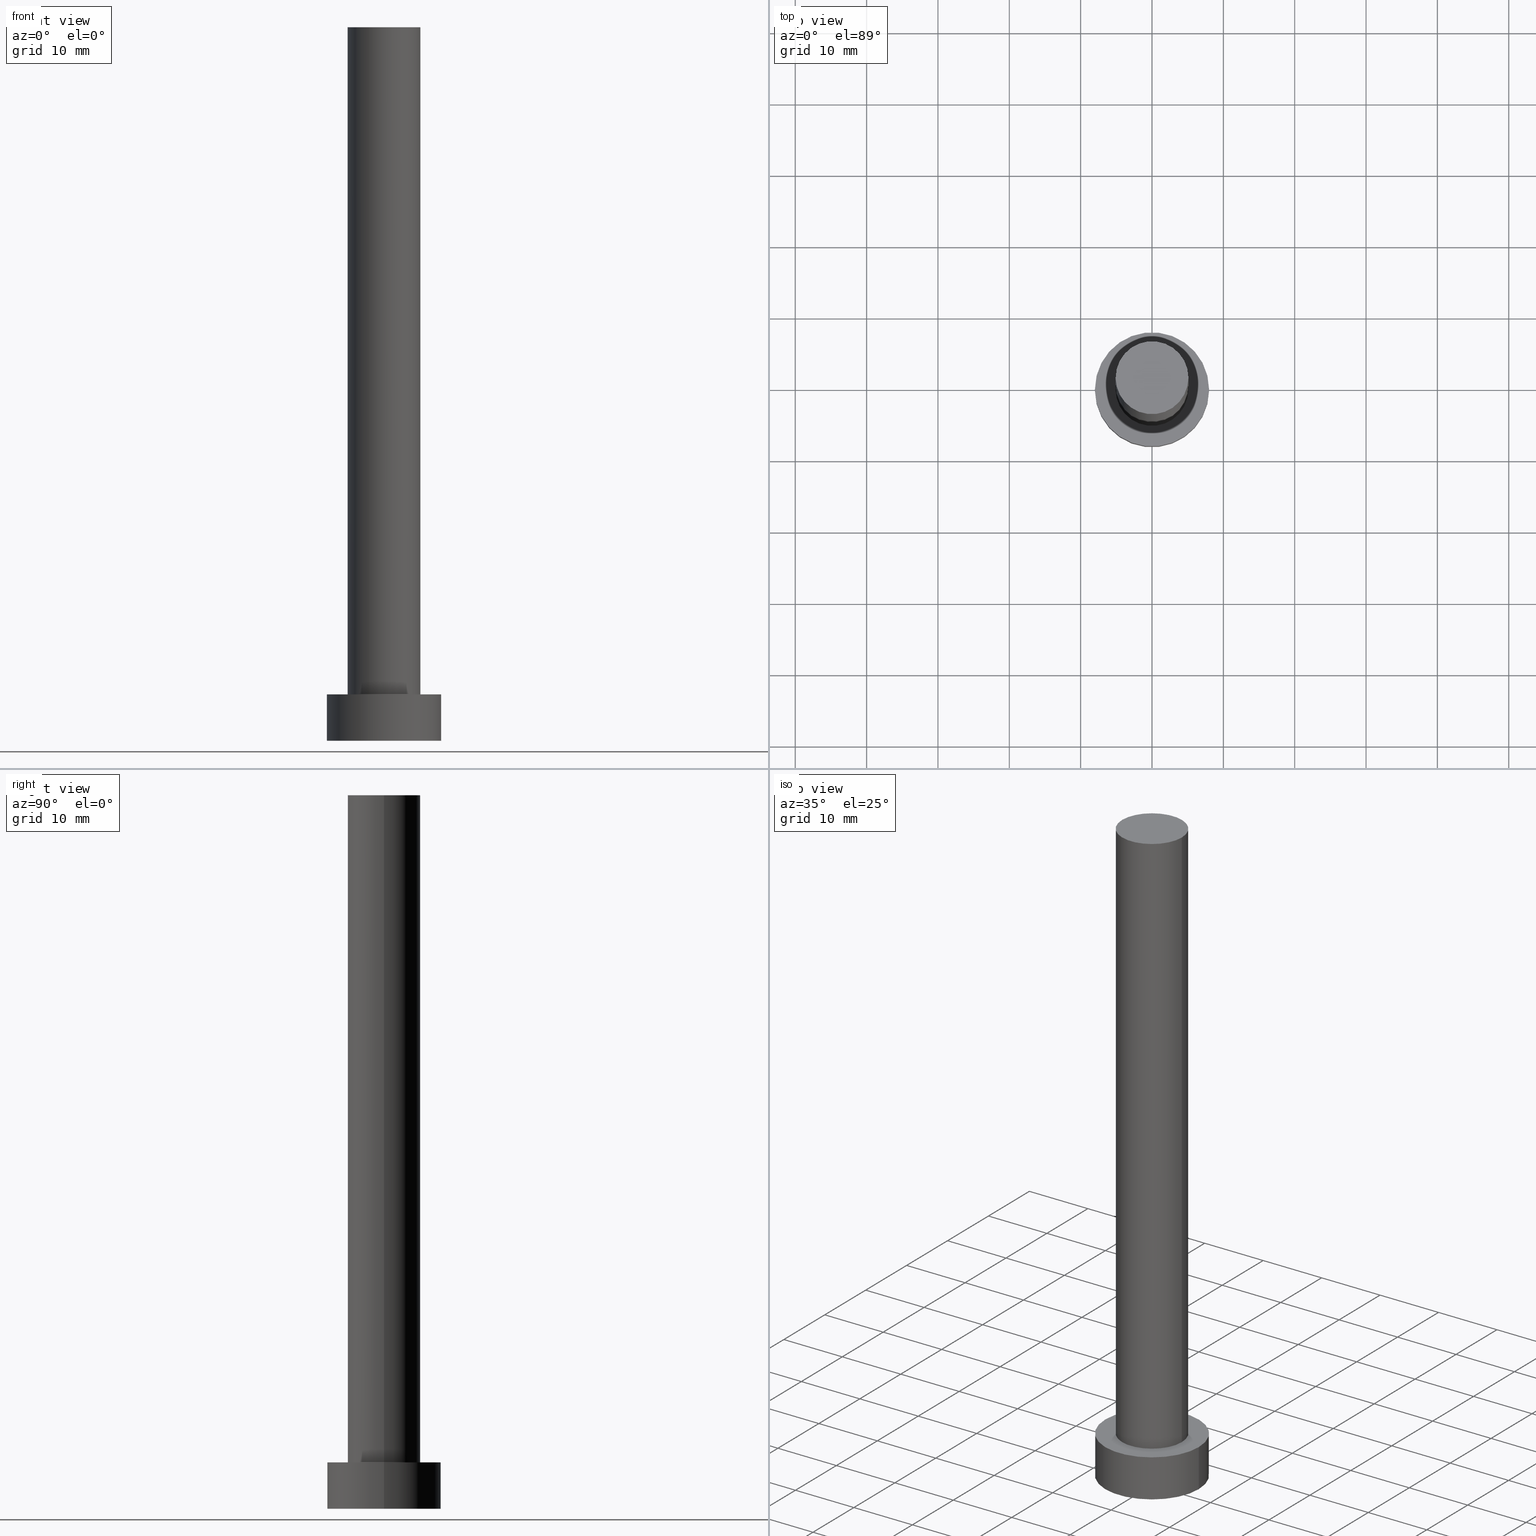
[diagram: canonical four-view strip — front | top / right | iso, engineering-drawing reading convention]
A machine part, canonical four-view strip (front | top / right | iso — engineering-drawing reading convention). The complete STEP part file that produces these views, byte-faithful:
ISO-10303-21;
HEADER;
FILE_DESCRIPTION (( 'STEP AP203' ),
    '1' );
FILE_NAME ('6bbd.STEP',
    '2023-02-13T13:07:44',
    ( '' ),
    ( '' ),
    'SwSTEP 2.0',
    'SolidWorks 2019',
    '' );
FILE_SCHEMA (( 'CONFIG_CONTROL_DESIGN' ));
ENDSEC;

DATA;
#1 = ORIENTED_EDGE ( 'NONE', *, *, #247, .F. ) ;
#2 = PERSON_AND_ORGANIZATION ( #30, #5 ) ;
#3 = EDGE_LOOP ( 'NONE', ( #95, #223 ) ) ;
#4 = CALENDAR_DATE ( 2023, 13, 2 ) ;
#5 = ORGANIZATION ( 'NEUR�EN�', 'NEUR�EN�', '' ) ;
#6 = DIRECTION ( 'NONE',  ( -0.000000000000000000, -0.000000000000000000, -1.000000000000000000 ) ) ;
#7 = APPROVAL_DATE_TIME ( #67, #46 ) ;
#8 = APPROVAL_PERSON_ORGANIZATION ( #41, #117, #212 ) ;
#9 = DIRECTION ( 'NONE',  ( 0.000000000000000000, 0.000000000000000000, 1.000000000000000000 ) ) ;
#10 = DIRECTION ( 'NONE',  ( 0.000000000000000000, 0.000000000000000000, 1.000000000000000000 ) ) ;
#11 = ADVANCED_FACE ( 'NONE', ( #226 ), #193, .T. ) ;
#12 = CARTESIAN_POINT ( 'NONE',  ( 0.000000000000000000, 0.000000000000000000, 0.000000000000000000 ) ) ;
#13 = APPLICATION_CONTEXT ( 'configuration controlled 3d designs of mechanical parts and assemblies' ) ;
#14 = CIRCLE ( 'NONE', #60, 8.000000000000000000 ) ;
#15 = CARTESIAN_POINT ( 'NONE',  ( 0.000000000000000000, 0.000000000000000000, 6.500000000000000000 ) ) ;
#16 =( NAMED_UNIT ( * ) SI_UNIT ( $, .STERADIAN. ) SOLID_ANGLE_UNIT ( ) );
#17 = CARTESIAN_POINT ( 'NONE',  ( 0.000000000000000000, 0.000000000000000000, 6.500000000000000000 ) ) ;
#18 = MECHANICAL_CONTEXT ( 'NONE', #13, 'mechanical' ) ;
#19 = EDGE_LOOP ( 'NONE', ( #119, #21 ) ) ;
#20 = COORDINATED_UNIVERSAL_TIME_OFFSET ( 1, 0, .AHEAD. ) ;
#21 = ORIENTED_EDGE ( 'NONE', *, *, #201, .T. ) ;
#22 = PERSON_AND_ORGANIZATION ( #30, #5 ) ;
#23 = ORIENTED_EDGE ( 'NONE', *, *, #73, .T. ) ;
#24 = ORIENTED_EDGE ( 'NONE', *, *, #35, .F. ) ;
#25 = COORDINATED_UNIVERSAL_TIME_OFFSET ( 1, 0, .AHEAD. ) ;
#26 = CC_DESIGN_DATE_AND_TIME_ASSIGNMENT ( #211, #54, ( #137 ) ) ;
#27 = PERSON_AND_ORGANIZATION_ROLE ( 'classification_officer' ) ;
#28 = AXIS2_PLACEMENT_3D ( 'NONE', #65, #133, #232 ) ;
#29 = PERSON_AND_ORGANIZATION ( #30, #5 ) ;
#30 = PERSON ( 'NEUR�EN�', 'NEUR�EN�', 'NEUR�EN�', ('NEUR�EN�'), ('NEUR�EN�'), ('NEUR�EN�') ) ;
#31 = LOCAL_TIME ( 14, 7, 44.00000000000000000, #49 ) ;
#32 = EDGE_CURVE ( 'NONE', #58, #123, #64, .T. ) ;
#33 = DIRECTION ( 'NONE',  ( 0.000000000000000000, 0.000000000000000000, 1.000000000000000000 ) ) ;
#34 = DIRECTION ( 'NONE',  ( 1.000000000000000000, 0.000000000000000000, 0.000000000000000000 ) ) ;
#35 = EDGE_CURVE ( 'NONE', #150, #142, #84, .T. ) ;
#36 = AXIS2_PLACEMENT_3D ( 'NONE', #183, #177, #53 ) ;
#37 = LOCAL_TIME ( 14, 7, 44.00000000000000000, #25 ) ;
#38 = DIRECTION ( 'NONE',  ( 0.000000000000000000, 0.000000000000000000, 1.000000000000000000 ) ) ;
#39 = CARTESIAN_POINT ( 'NONE',  ( -5.100000000000001421, 0.000000000000000000, 100.0000000000000000 ) ) ;
#40 = ORIENTED_EDGE ( 'NONE', *, *, #187, .T. ) ;
#41 = PERSON_AND_ORGANIZATION ( #30, #5 ) ;
#42 = CLOSED_SHELL ( 'NONE', ( #94, #11, #126, #251, #228, #241, #140 ) ) ;
#43 = DIRECTION ( 'NONE',  ( 1.000000000000000000, 0.000000000000000000, 0.000000000000000000 ) ) ;
#44 = EDGE_LOOP ( 'NONE', ( #74, #173, #98, #24 ) ) ;
#45 = DIRECTION ( 'NONE',  ( -1.000000000000000000, 0.000000000000000000, 0.000000000000000000 ) ) ;
#46 = APPROVAL ( #108, 'NEUR�EN�' ) ;
#47 = FACE_OUTER_BOUND ( 'NONE', #105, .T. ) ;
#48 = DATE_TIME_ROLE ( 'classification_date' ) ;
#49 = COORDINATED_UNIVERSAL_TIME_OFFSET ( 1, 0, .AHEAD. ) ;
#50 = SECURITY_CLASSIFICATION_LEVEL ( 'unclassified' ) ;
#51 = AXIS2_PLACEMENT_3D ( 'NONE', #77, #81, #61 ) ;
#52 = CC_DESIGN_PERSON_AND_ORGANIZATION_ASSIGNMENT ( #2, #97, ( #137 ) ) ;
#53 = DIRECTION ( 'NONE',  ( 1.000000000000000000, 0.000000000000000000, -0.000000000000000000 ) ) ;
#54 = DATE_TIME_ROLE ( 'creation_date' ) ;
#55 = FACE_OUTER_BOUND ( 'NONE', #19, .T. ) ;
#56 = VERTEX_POINT ( 'NONE', #221 ) ;
#57 =( LENGTH_UNIT ( ) NAMED_UNIT ( * ) SI_UNIT ( .MILLI., .METRE. ) );
#58 = VERTEX_POINT ( 'NONE', #39 ) ;
#59 = CARTESIAN_POINT ( 'NONE',  ( 0.000000000000000000, 0.000000000000000000, 6.500000000000000000 ) ) ;
#60 = AXIS2_PLACEMENT_3D ( 'NONE', #249, #38, #90 ) ;
#61 = DIRECTION ( 'NONE',  ( 1.000000000000000000, 0.000000000000000000, 0.000000000000000000 ) ) ;
#62 = CALENDAR_DATE ( 2023, 13, 2 ) ;
#63 = DATE_AND_TIME ( #154, #37 ) ;
#64 = CIRCLE ( 'NONE', #51, 5.100000000000001421 ) ;
#65 = CARTESIAN_POINT ( 'NONE',  ( 0.000000000000000000, 0.000000000000000000, 6.500000000000000000 ) ) ;
#66 = DIRECTION ( 'NONE',  ( -0.000000000000000000, -0.000000000000000000, -1.000000000000000000 ) ) ;
#67 = DATE_AND_TIME ( #107, #31 ) ;
#68 = DIRECTION ( 'NONE',  ( 1.000000000000000000, 0.000000000000000000, 0.000000000000000000 ) ) ;
#69 = CC_DESIGN_DATE_AND_TIME_ASSIGNMENT ( #63, #48, ( #161 ) ) ;
#70 = DIRECTION ( 'NONE',  ( 0.000000000000000000, 0.000000000000000000, 1.000000000000000000 ) ) ;
#71 = CARTESIAN_POINT ( 'NONE',  ( 0.000000000000000000, 0.000000000000000000, 6.500000000000000000 ) ) ;
#72 = DESIGN_CONTEXT ( 'detailed design', #184, 'design' ) ;
#73 = EDGE_CURVE ( 'NONE', #167, #56, #155, .T. ) ;
#74 = ORIENTED_EDGE ( 'NONE', *, *, #201, .F. ) ;
#75 = PERSON_AND_ORGANIZATION ( #30, #5 ) ;
#76 = CARTESIAN_POINT ( 'NONE',  ( 0.000000000000000000, 0.000000000000000000, 0.000000000000000000 ) ) ;
#77 = CARTESIAN_POINT ( 'NONE',  ( 0.000000000000000000, 0.000000000000000000, 100.0000000000000000 ) ) ;
#78 = EDGE_CURVE ( 'NONE', #103, #213, #246, .T. ) ;
#79 = PERSON_AND_ORGANIZATION_ROLE ( 'design_owner' ) ;
#80 = CARTESIAN_POINT ( 'NONE',  ( 0.000000000000000000, 0.000000000000000000, 100.0000000000000000 ) ) ;
#81 = DIRECTION ( 'NONE',  ( 0.000000000000000000, 0.000000000000000000, 1.000000000000000000 ) ) ;
#82 = AXIS2_PLACEMENT_3D ( 'NONE', #217, #70, #207 ) ;
#83 = COORDINATED_UNIVERSAL_TIME_OFFSET ( 1, 0, .AHEAD. ) ;
#84 = LINE ( 'NONE', #172, #216 ) ;
#85 = PRODUCT_DEFINITION_SHAPE ( 'NONE', 'NONE',  #137 ) ;
#86 = CARTESIAN_POINT ( 'NONE',  ( 0.000000000000000000, 0.000000000000000000, 6.500000000000000000 ) ) ;
#87 = CARTESIAN_POINT ( 'NONE',  ( 0.000000000000000000, 0.000000000000000000, 100.0000000000000000 ) ) ;
#88 = CC_DESIGN_SECURITY_CLASSIFICATION ( #161, ( #122 ) ) ;
#89 = CARTESIAN_POINT ( 'NONE',  ( -5.100000000000001421, 0.000000000000000000, 100.0000000000000000 ) ) ;
#90 = DIRECTION ( 'NONE',  ( 1.000000000000000000, 0.000000000000000000, 0.000000000000000000 ) ) ;
#91 = EDGE_LOOP ( 'NONE', ( #1, #101, #225, #23 ) ) ;
#92 = AXIS2_PLACEMENT_3D ( 'NONE', #71, #160, #68 ) ;
#93 = CIRCLE ( 'NONE', #82, 5.100000000000001421 ) ;
#94 = ADVANCED_FACE ( 'NONE', ( #215 ), #196, .T. ) ;
#95 = ORIENTED_EDGE ( 'NONE', *, *, #73, .F. ) ;
#96 = DATE_AND_TIME ( #62, #135 ) ;
#97 = PERSON_AND_ORGANIZATION_ROLE ( 'creator' ) ;
#98 = ORIENTED_EDGE ( 'NONE', *, *, #179, .T. ) ;
#99 = CC_DESIGN_APPROVAL ( #117, ( #137 ) ) ;
#100 = PERSON_AND_ORGANIZATION ( #30, #5 ) ;
#101 = ORIENTED_EDGE ( 'NONE', *, *, #32, .F. ) ;
#102 = DATE_AND_TIME ( #4, #233 ) ;
#103 = VERTEX_POINT ( 'NONE', #227 ) ;
#104 = APPROVAL_STATUS ( 'not_yet_approved' ) ;
#105 = EDGE_LOOP ( 'NONE', ( #145, #240, #146, #189 ) ) ;
#106 = ORIENTED_EDGE ( 'NONE', *, *, #206, .T. ) ;
#107 = CALENDAR_DATE ( 2023, 13, 2 ) ;
#108 = APPROVAL_STATUS ( 'not_yet_approved' ) ;
#109 = DIRECTION ( 'NONE',  ( 1.000000000000000000, 0.000000000000000000, 0.000000000000000000 ) ) ;
#110 = CC_DESIGN_PERSON_AND_ORGANIZATION_ASSIGNMENT ( #220, #118, ( #122 ) ) ;
#111 = PLANE ( 'NONE',  #36 ) ;
#112 = EDGE_LOOP ( 'NONE', ( #210, #148 ) ) ;
#113 = AXIS2_PLACEMENT_3D ( 'NONE', #59, #185, #209 ) ;
#114 = CYLINDRICAL_SURFACE ( 'NONE', #116, 5.100000000000001421 ) ;
#115 = DIRECTION ( 'NONE',  ( 1.000000000000000000, 0.000000000000000000, -0.000000000000000000 ) ) ;
#116 = AXIS2_PLACEMENT_3D ( 'NONE', #80, #164, #235 ) ;
#117 = APPROVAL ( #127, 'NEUR�EN�' ) ;
#118 = PERSON_AND_ORGANIZATION_ROLE ( 'design_supplier' ) ;
#119 = ORIENTED_EDGE ( 'NONE', *, *, #222, .T. ) ;
#120 = MANIFOLD_SOLID_BREP ( 'P�idat vysunut�m3', #42 ) ;
#121 = DIRECTION ( 'NONE',  ( 0.000000000000000000, 0.000000000000000000, 1.000000000000000000 ) ) ;
#122 = PRODUCT_DEFINITION_FORMATION_WITH_SPECIFIED_SOURCE ( 'LIBOVOLN�', '', #171, .NOT_KNOWN. ) ;
#123 = VERTEX_POINT ( 'NONE', #175 ) ;
#124 = CALENDAR_DATE ( 2023, 13, 2 ) ;
#125 = ORIENTED_EDGE ( 'NONE', *, *, #192, .F. ) ;
#126 = ADVANCED_FACE ( 'NONE', ( #47 ), #244, .T. ) ;
#127 = APPROVAL_STATUS ( 'not_yet_approved' ) ;
#128 = AXIS2_PLACEMENT_3D ( 'NONE', #12, #33, #115 ) ;
#129 = CC_DESIGN_PERSON_AND_ORGANIZATION_ASSIGNMENT ( #100, #79, ( #171 ) ) ;
#130 = APPROVAL_ROLE ( '' ) ;
#131 = LOCAL_TIME ( 14, 7, 44.00000000000000000, #147 ) ;
#132 = CIRCLE ( 'NONE', #254, 8.000000000000000000 ) ;
#133 = DIRECTION ( 'NONE',  ( -0.000000000000000000, -0.000000000000000000, -1.000000000000000000 ) ) ;
#134 = AXIS2_PLACEMENT_3D ( 'NONE', #17, #165, #109 ) ;
#135 = LOCAL_TIME ( 14, 7, 44.00000000000000000, #83 ) ;
#136 = PLANE ( 'NONE',  #128 ) ;
#137 = PRODUCT_DEFINITION ( 'NEZN�M�', '', #122, #72 ) ;
#138 = CARTESIAN_POINT ( 'NONE',  ( 0.000000000000000000, 0.000000000000000000, 0.000000000000000000 ) ) ;
#139 = APPROVAL_PERSON_ORGANIZATION ( #194, #46, #130 ) ;
#140 = ADVANCED_FACE ( 'NONE', ( #218 ), #111, .T. ) ;
#141 = PERSON_AND_ORGANIZATION_ROLE ( 'creator' ) ;
#142 = VERTEX_POINT ( 'NONE', #219 ) ;
#143 = ADVANCED_BREP_SHAPE_REPRESENTATION ( '6bbd', ( #120, #176 ), #170 ) ;
#144 = PLANE ( 'NONE',  #113 ) ;
#145 = ORIENTED_EDGE ( 'NONE', *, *, #78, .F. ) ;
#146 = ORIENTED_EDGE ( 'NONE', *, *, #35, .T. ) ;
#147 = COORDINATED_UNIVERSAL_TIME_OFFSET ( 1, 0, .AHEAD. ) ;
#148 = ORIENTED_EDGE ( 'NONE', *, *, #179, .F. ) ;
#149 = CARTESIAN_POINT ( 'NONE',  ( 5.100000000000001421, 6.245698675651502811E-16, 100.0000000000000000 ) ) ;
#150 = VERTEX_POINT ( 'NONE', #248 ) ;
#151 = AXIS2_PLACEMENT_3D ( 'NONE', #86, #238, #45 ) ;
#152 = AXIS2_PLACEMENT_3D ( 'NONE', #158, #9, #250 ) ;
#153 = DIRECTION ( 'NONE',  ( -1.000000000000000000, 0.000000000000000000, 0.000000000000000000 ) ) ;
#154 = CALENDAR_DATE ( 2023, 13, 2 ) ;
#155 = CIRCLE ( 'NONE', #134, 5.100000000000001421 ) ;
#156 = CIRCLE ( 'NONE', #92, 5.100000000000001421 ) ;
#157 = CC_DESIGN_PERSON_AND_ORGANIZATION_ASSIGNMENT ( #75, #141, ( #122 ) ) ;
#158 = CARTESIAN_POINT ( 'NONE',  ( 0.000000000000000000, 0.000000000000000000, 6.500000000000000000 ) ) ;
#159 = DIRECTION ( 'NONE',  ( 0.000000000000000000, 0.000000000000000000, 1.000000000000000000 ) ) ;
#160 = DIRECTION ( 'NONE',  ( 0.000000000000000000, 0.000000000000000000, 1.000000000000000000 ) ) ;
#161 = SECURITY_CLASSIFICATION ( '', '', #50 ) ;
#162 = EDGE_LOOP ( 'NONE', ( #186, #40 ) ) ;
#163 = DIRECTION ( 'NONE',  ( -0.000000000000000000, -0.000000000000000000, -1.000000000000000000 ) ) ;
#164 = DIRECTION ( 'NONE',  ( -0.000000000000000000, -0.000000000000000000, -1.000000000000000000 ) ) ;
#165 = DIRECTION ( 'NONE',  ( 0.000000000000000000, 0.000000000000000000, 1.000000000000000000 ) ) ;
#166 =( NAMED_UNIT ( * ) PLANE_ANGLE_UNIT ( ) SI_UNIT ( $, .RADIAN. ) );
#167 = VERTEX_POINT ( 'NONE', #181 ) ;
#168 = APPROVAL ( #104, 'NEUR�EN�' ) ;
#169 = FACE_BOUND ( 'NONE', #3, .T. ) ;
#170 =( GEOMETRIC_REPRESENTATION_CONTEXT ( 3 ) GLOBAL_UNCERTAINTY_ASSIGNED_CONTEXT ( ( #199 ) ) GLOBAL_UNIT_ASSIGNED_CONTEXT ( ( #57, #166, #16 ) ) REPRESENTATION_CONTEXT ( 'NONE', 'WORKASPACE' ) );
#171 = PRODUCT ( '6bbd', '6bbd', '', ( #18 ) ) ;
#172 = CARTESIAN_POINT ( 'NONE',  ( -8.000000000000000000, 0.000000000000000000, 6.500000000000000000 ) ) ;
#173 = ORIENTED_EDGE ( 'NONE', *, *, #78, .T. ) ;
#174 = EDGE_CURVE ( 'NONE', #142, #213, #205, .T. ) ;
#175 = CARTESIAN_POINT ( 'NONE',  ( 5.100000000000001421, 6.245698675651502811E-16, 100.0000000000000000 ) ) ;
#176 = AXIS2_PLACEMENT_3D ( 'NONE', #76, #121, #43 ) ;
#177 = DIRECTION ( 'NONE',  ( 0.000000000000000000, 0.000000000000000000, 1.000000000000000000 ) ) ;
#178 = VECTOR ( 'NONE', #180, 1000.000000000000000 ) ;
#179 = EDGE_CURVE ( 'NONE', #213, #142, #14, .T. ) ;
#180 = DIRECTION ( 'NONE',  ( -0.000000000000000000, -0.000000000000000000, -1.000000000000000000 ) ) ;
#181 = CARTESIAN_POINT ( 'NONE',  ( -5.100000000000001421, 0.000000000000000000, 6.500000000000000000 ) ) ;
#182 = CC_DESIGN_APPROVAL ( #168, ( #122 ) ) ;
#183 = CARTESIAN_POINT ( 'NONE',  ( 0.000000000000000000, 0.000000000000000000, 100.0000000000000000 ) ) ;
#184 = APPLICATION_CONTEXT ( 'configuration controlled 3d designs of mechanical parts and assemblies' ) ;
#185 = DIRECTION ( 'NONE',  ( 0.000000000000000000, 0.000000000000000000, 1.000000000000000000 ) ) ;
#186 = ORIENTED_EDGE ( 'NONE', *, *, #32, .T. ) ;
#187 = EDGE_CURVE ( 'NONE', #123, #58, #93, .T. ) ;
#188 = APPROVAL_DATE_TIME ( #102, #117 ) ;
#189 = ORIENTED_EDGE ( 'NONE', *, *, #174, .T. ) ;
#190 = APPROVAL_ROLE ( '' ) ;
#191 = ORIENTED_EDGE ( 'NONE', *, *, #187, .F. ) ;
#192 = EDGE_CURVE ( 'NONE', #58, #167, #200, .T. ) ;
#193 = CYLINDRICAL_SURFACE ( 'NONE', #151, 8.000000000000000000 ) ;
#194 = PERSON_AND_ORGANIZATION ( #30, #5 ) ;
#195 = DIRECTION ( 'NONE',  ( -0.000000000000000000, -0.000000000000000000, -1.000000000000000000 ) ) ;
#196 = CYLINDRICAL_SURFACE ( 'NONE', #230, 5.100000000000001421 ) ;
#197 = VECTOR ( 'NONE', #195, 1000.000000000000000 ) ;
#198 = CC_DESIGN_APPROVAL ( #46, ( #161 ) ) ;
#199 = UNCERTAINTY_MEASURE_WITH_UNIT (LENGTH_MEASURE( 1.000000000000000082E-05 ), #57, 'distance_accuracy_value', 'NONE');
#200 = LINE ( 'NONE', #89, #178 ) ;
#201 = EDGE_CURVE ( 'NONE', #103, #150, #132, .T. ) ;
#202 = DIRECTION ( 'NONE',  ( 1.000000000000000000, 0.000000000000000000, 0.000000000000000000 ) ) ;
#203 = FACE_OUTER_BOUND ( 'NONE', #91, .T. ) ;
#204 = VECTOR ( 'NONE', #163, 1000.000000000000000 ) ;
#205 = CIRCLE ( 'NONE', #252, 8.000000000000000000 ) ;
#206 = EDGE_CURVE ( 'NONE', #56, #167, #156, .T. ) ;
#207 = DIRECTION ( 'NONE',  ( 1.000000000000000000, 0.000000000000000000, 0.000000000000000000 ) ) ;
#208 = APPLICATION_PROTOCOL_DEFINITION ( 'international standard', 'config_control_design', 1994, #13 ) ;
#209 = DIRECTION ( 'NONE',  ( 1.000000000000000000, 0.000000000000000000, -0.000000000000000000 ) ) ;
#210 = ORIENTED_EDGE ( 'NONE', *, *, #174, .F. ) ;
#211 = DATE_AND_TIME ( #124, #131 ) ;
#212 = APPROVAL_ROLE ( '' ) ;
#213 = VERTEX_POINT ( 'NONE', #229 ) ;
#214 = CARTESIAN_POINT ( 'NONE',  ( 8.000000000000000000, 9.797174393178823685E-16, 6.500000000000000000 ) ) ;
#215 = FACE_OUTER_BOUND ( 'NONE', #255, .T. ) ;
#216 = VECTOR ( 'NONE', #6, 1000.000000000000000 ) ;
#217 = CARTESIAN_POINT ( 'NONE',  ( 0.000000000000000000, 0.000000000000000000, 100.0000000000000000 ) ) ;
#218 = FACE_OUTER_BOUND ( 'NONE', #162, .T. ) ;
#219 = CARTESIAN_POINT ( 'NONE',  ( -8.000000000000000000, 0.000000000000000000, 0.000000000000000000 ) ) ;
#220 = PERSON_AND_ORGANIZATION ( #30, #5 ) ;
#221 = CARTESIAN_POINT ( 'NONE',  ( 5.100000000000001421, 6.245698675651502811E-16, 6.500000000000000000 ) ) ;
#222 = EDGE_CURVE ( 'NONE', #150, #103, #239, .T. ) ;
#223 = ORIENTED_EDGE ( 'NONE', *, *, #206, .F. ) ;
#224 = APPLICATION_PROTOCOL_DEFINITION ( 'international standard', 'config_control_design', 1994, #184 ) ;
#225 = ORIENTED_EDGE ( 'NONE', *, *, #192, .T. ) ;
#226 = FACE_OUTER_BOUND ( 'NONE', #44, .T. ) ;
#227 = CARTESIAN_POINT ( 'NONE',  ( 8.000000000000000000, 9.797174393178823685E-16, 6.500000000000000000 ) ) ;
#228 = ADVANCED_FACE ( 'NONE', ( #231 ), #136, .F. ) ;
#229 = CARTESIAN_POINT ( 'NONE',  ( 8.000000000000000000, 9.797174393178823685E-16, 0.000000000000000000 ) ) ;
#230 = AXIS2_PLACEMENT_3D ( 'NONE', #87, #66, #153 ) ;
#231 = FACE_OUTER_BOUND ( 'NONE', #112, .T. ) ;
#232 = DIRECTION ( 'NONE',  ( -1.000000000000000000, 0.000000000000000000, 0.000000000000000000 ) ) ;
#233 = LOCAL_TIME ( 14, 7, 44.00000000000000000, #20 ) ;
#234 = PRODUCT_RELATED_PRODUCT_CATEGORY ( 'detail', '', ( #171 ) ) ;
#235 = DIRECTION ( 'NONE',  ( -1.000000000000000000, 0.000000000000000000, 0.000000000000000000 ) ) ;
#236 = ORIENTED_EDGE ( 'NONE', *, *, #247, .T. ) ;
#237 = LINE ( 'NONE', #149, #204 ) ;
#238 = DIRECTION ( 'NONE',  ( -0.000000000000000000, -0.000000000000000000, -1.000000000000000000 ) ) ;
#239 = CIRCLE ( 'NONE', #152, 8.000000000000000000 ) ;
#240 = ORIENTED_EDGE ( 'NONE', *, *, #222, .F. ) ;
#241 = ADVANCED_FACE ( 'NONE', ( #203 ), #114, .T. ) ;
#242 = APPROVAL_PERSON_ORGANIZATION ( #22, #168, #190 ) ;
#243 = CC_DESIGN_PERSON_AND_ORGANIZATION_ASSIGNMENT ( #29, #27, ( #161 ) ) ;
#244 = CYLINDRICAL_SURFACE ( 'NONE', #28, 8.000000000000000000 ) ;
#245 = SHAPE_DEFINITION_REPRESENTATION ( #85, #143 ) ;
#246 = LINE ( 'NONE', #214, #197 ) ;
#247 = EDGE_CURVE ( 'NONE', #123, #56, #237, .T. ) ;
#248 = CARTESIAN_POINT ( 'NONE',  ( -8.000000000000000000, 0.000000000000000000, 6.500000000000000000 ) ) ;
#249 = CARTESIAN_POINT ( 'NONE',  ( 0.000000000000000000, 0.000000000000000000, 0.000000000000000000 ) ) ;
#250 = DIRECTION ( 'NONE',  ( 1.000000000000000000, 0.000000000000000000, 0.000000000000000000 ) ) ;
#251 = ADVANCED_FACE ( 'NONE', ( #169, #55 ), #144, .T. ) ;
#252 = AXIS2_PLACEMENT_3D ( 'NONE', #138, #10, #202 ) ;
#253 = APPROVAL_DATE_TIME ( #96, #168 ) ;
#254 = AXIS2_PLACEMENT_3D ( 'NONE', #15, #159, #34 ) ;
#255 = EDGE_LOOP ( 'NONE', ( #191, #236, #106, #125 ) ) ;
ENDSEC;
END-ISO-10303-21;
